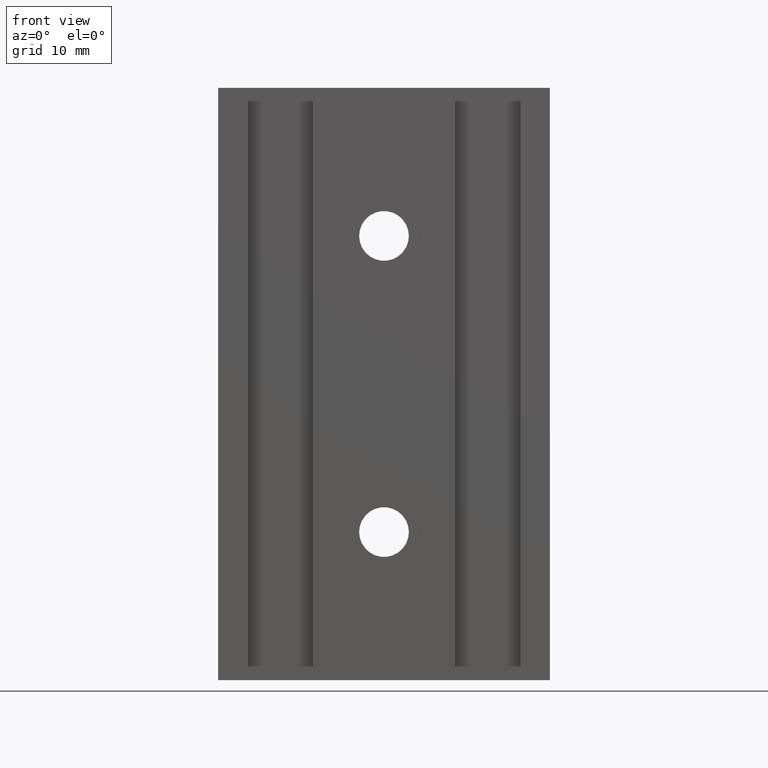
[diagram: clean part render]
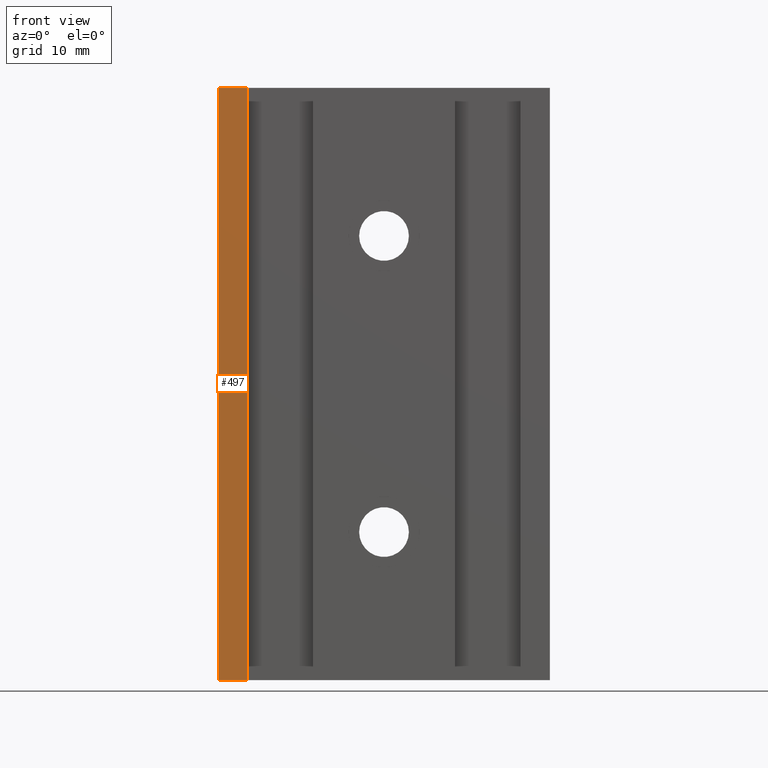
[diagram: same view with one face highlighted and labeled with its STEP entity id]
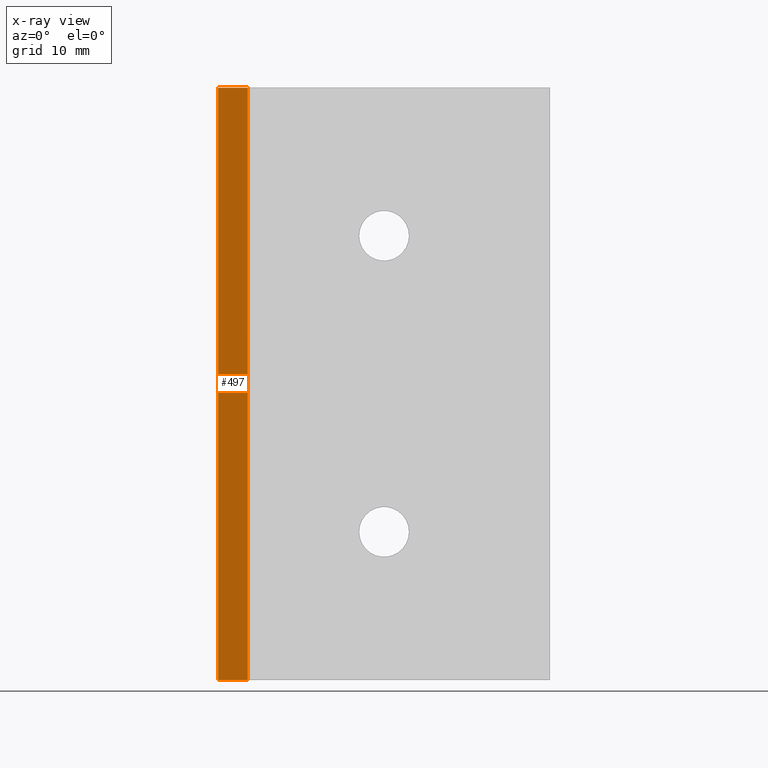
[diagram: x-ray of the same camera — body ghosted, the highlighted face saturated]
A machine part, front view. The second image highlights one B-rep face of the part: STEP entity #497.
The next image is the same camera in x-ray: the body ghosted, the highlighted face saturated — about 0% of this face is hidden behind the body in this view.
In plain terms, the highlighted planar face has unit normal (0, -1, 0).
Its self-contained STEP definition (entity closure, byte-faithful):
#37=PLANE('',#560);
#65=FACE_OUTER_BOUND('',#99,.T.);
#99=EDGE_LOOP('',(#425,#426,#427,#428));
#125=LINE('',#768,#179);
#149=LINE('',#815,#203);
#150=LINE('',#818,#204);
#151=LINE('',#819,#205);
#179=VECTOR('',#632,10.);
#203=VECTOR('',#674,10.);
#204=VECTOR('',#677,10.);
#205=VECTOR('',#678,10.);
#251=VERTEX_POINT('',#765);
#252=VERTEX_POINT('',#767);
#266=VERTEX_POINT('',#813);
#267=VERTEX_POINT('',#817);
#301=EDGE_CURVE('',#251,#252,#125,.T.);
#325=EDGE_CURVE('',#251,#266,#149,.T.);
#326=EDGE_CURVE('',#267,#266,#150,.T.);
#327=EDGE_CURVE('',#252,#267,#151,.T.);
#425=ORIENTED_EDGE('',*,*,#325,.T.);
#426=ORIENTED_EDGE('',*,*,#326,.F.);
#427=ORIENTED_EDGE('',*,*,#327,.F.);
#428=ORIENTED_EDGE('',*,*,#301,.F.);
#497=ADVANCED_FACE('',(#65),#37,.T.);
#560=AXIS2_PLACEMENT_3D('',#816,#675,#676);
#632=DIRECTION('',(-1.,-8.88178419700126E-16,0.));
#674=DIRECTION('',(0.,0.,1.));
#675=DIRECTION('center_axis',(8.88178419700126E-16,-1.,0.));
#676=DIRECTION('ref_axis',(1.,8.88178419700126E-16,0.));
#677=DIRECTION('',(1.,8.88178419700126E-16,0.));
#678=DIRECTION('',(0.,0.,1.));
#765=CARTESIAN_POINT('',(-11.5,-4.44089209850063E-15,-25.));
#767=CARTESIAN_POINT('',(-14.,-4.44089209850063E-15,-25.));
#768=CARTESIAN_POINT('',(-14.,-6.66133814775094E-15,-25.));
#813=CARTESIAN_POINT('',(-11.5,-4.44089209850063E-15,25.));
#815=CARTESIAN_POINT('',(-11.5,-4.44089209850063E-15,0.));
#816=CARTESIAN_POINT('Origin',(-14.,-6.66133814775094E-15,0.));
#817=CARTESIAN_POINT('',(-14.,-4.44089209850063E-15,25.));
#818=CARTESIAN_POINT('',(-14.,-6.66133814775094E-15,25.));
#819=CARTESIAN_POINT('',(-14.,-6.66133814775094E-15,0.));